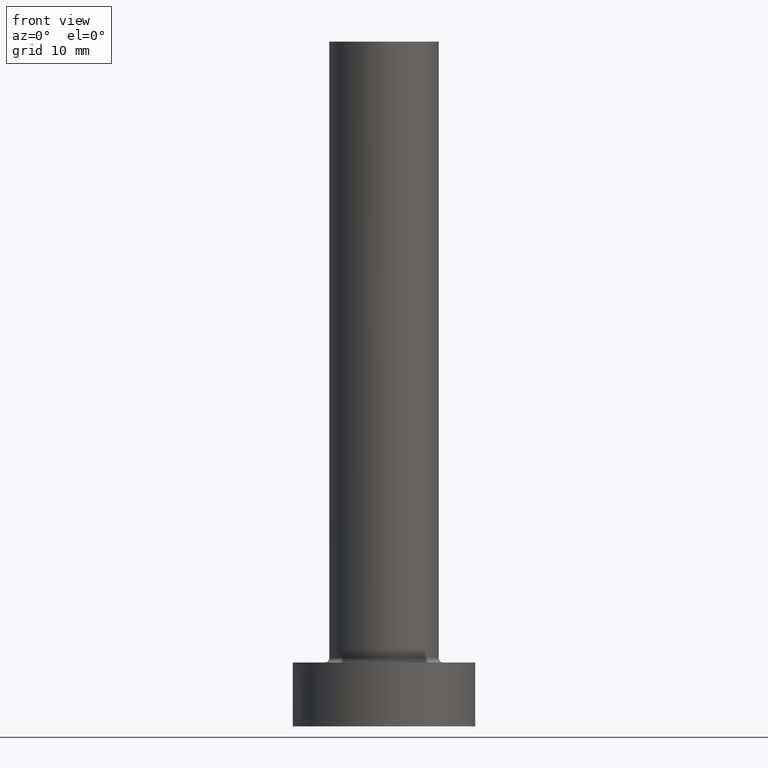
[diagram: clean part render]
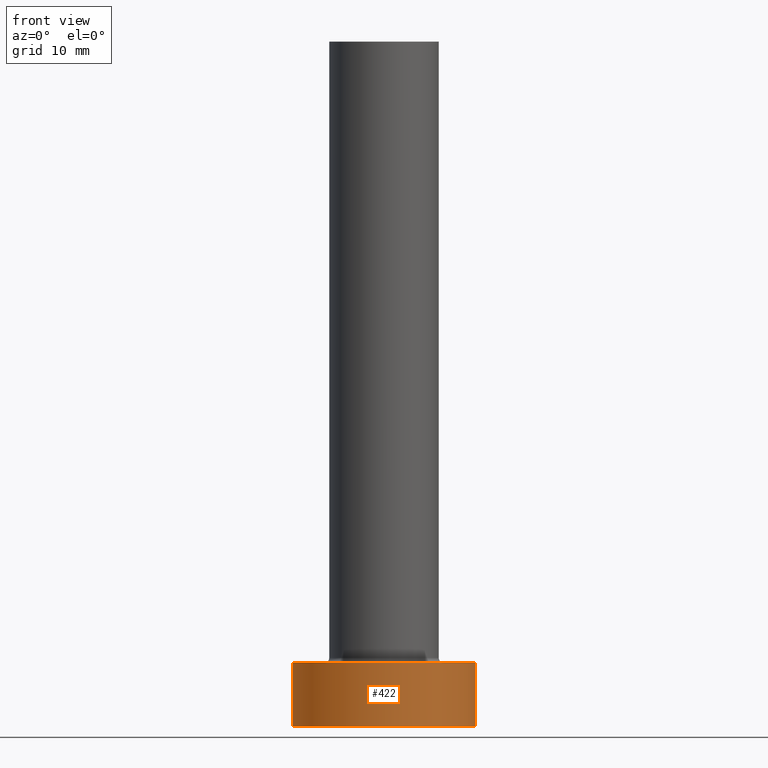
[diagram: same view with one face highlighted and labeled with its STEP entity id]
A machine part, front view. The second image highlights one B-rep face of the part: STEP entity #422.
In plain terms, the highlighted cylindrical surface (partial cylindrical patch) has radius 10 mm, axis along (-0, -0, -1).
Its self-contained STEP definition (entity closure, byte-faithful):
#26 = VERTEX_POINT ( 'NONE', #315 ) ;
#28 = CARTESIAN_POINT ( 'NONE',  ( 0.000000000000000000, 0.000000000000000000, 7.000000000000000000 ) ) ;
#40 = DIRECTION ( 'NONE',  ( -0.000000000000000000, -0.000000000000000000, -1.000000000000000000 ) ) ;
#41 = CIRCLE ( 'NONE', #262, 10.00000000000000000 ) ;
#52 = CARTESIAN_POINT ( 'NONE',  ( 0.000000000000000000, 0.000000000000000000, 7.000000000000000000 ) ) ;
#70 = CYLINDRICAL_SURFACE ( 'NONE', #155, 10.00000000000000000 ) ;
#87 = CARTESIAN_POINT ( 'NONE',  ( 10.00000000000000000, 1.224646799147353256E-15, 7.000000000000000000 ) ) ;
#90 = EDGE_CURVE ( 'NONE', #26, #240, #168, .T. ) ;
#93 = EDGE_CURVE ( 'NONE', #240, #148, #404, .T. ) ;
#96 = AXIS2_PLACEMENT_3D ( 'NONE', #52, #269, #354 ) ;
#108 = VECTOR ( 'NONE', #113, 1000.000000000000000 ) ;
#111 = CARTESIAN_POINT ( 'NONE',  ( 10.00000000000000000, 1.224646799147353256E-15, 7.000000000000000000 ) ) ;
#113 = DIRECTION ( 'NONE',  ( -0.000000000000000000, -0.000000000000000000, -1.000000000000000000 ) ) ;
#145 = CARTESIAN_POINT ( 'NONE',  ( -10.00000000000000000, 0.000000000000000000, 7.000000000000000000 ) ) ;
#148 = VERTEX_POINT ( 'NONE', #314 ) ;
#155 = AXIS2_PLACEMENT_3D ( 'NONE', #28, #166, #383 ) ;
#159 = VERTEX_POINT ( 'NONE', #194 ) ;
#166 = DIRECTION ( 'NONE',  ( -0.000000000000000000, -0.000000000000000000, -1.000000000000000000 ) ) ;
#168 = CIRCLE ( 'NONE', #96, 10.00000000000000000 ) ;
#170 = ORIENTED_EDGE ( 'NONE', *, *, #297, .T. ) ;
#172 = EDGE_CURVE ( 'NONE', #159, #148, #41, .T. ) ;
#184 = LINE ( 'NONE', #145, #108 ) ;
#192 = ORIENTED_EDGE ( 'NONE', *, *, #93, .F. ) ;
#194 = CARTESIAN_POINT ( 'NONE',  ( -10.00000000000000000, 0.000000000000000000, 0.000000000000000000 ) ) ;
#203 = DIRECTION ( 'NONE',  ( 1.000000000000000000, 0.000000000000000000, 0.000000000000000000 ) ) ;
#211 = FACE_OUTER_BOUND ( 'NONE', #322, .T. ) ;
#240 = VERTEX_POINT ( 'NONE', #111 ) ;
#262 = AXIS2_PLACEMENT_3D ( 'NONE', #451, #418, #203 ) ;
#269 = DIRECTION ( 'NONE',  ( 0.000000000000000000, 0.000000000000000000, 1.000000000000000000 ) ) ;
#282 = ORIENTED_EDGE ( 'NONE', *, *, #90, .F. ) ;
#297 = EDGE_CURVE ( 'NONE', #26, #159, #184, .T. ) ;
#314 = CARTESIAN_POINT ( 'NONE',  ( 10.00000000000000000, 1.224646799147353256E-15, 0.000000000000000000 ) ) ;
#315 = CARTESIAN_POINT ( 'NONE',  ( -10.00000000000000000, 0.000000000000000000, 7.000000000000000000 ) ) ;
#322 = EDGE_LOOP ( 'NONE', ( #192, #282, #170, #397 ) ) ;
#354 = DIRECTION ( 'NONE',  ( 1.000000000000000000, 0.000000000000000000, 0.000000000000000000 ) ) ;
#383 = DIRECTION ( 'NONE',  ( -1.000000000000000000, 0.000000000000000000, 0.000000000000000000 ) ) ;
#397 = ORIENTED_EDGE ( 'NONE', *, *, #172, .T. ) ;
#404 = LINE ( 'NONE', #87, #447 ) ;
#418 = DIRECTION ( 'NONE',  ( 0.000000000000000000, 0.000000000000000000, 1.000000000000000000 ) ) ;
#422 = ADVANCED_FACE ( 'NONE', ( #211 ), #70, .T. ) ;
#447 = VECTOR ( 'NONE', #40, 1000.000000000000000 ) ;
#451 = CARTESIAN_POINT ( 'NONE',  ( 0.000000000000000000, 0.000000000000000000, 0.000000000000000000 ) ) ;